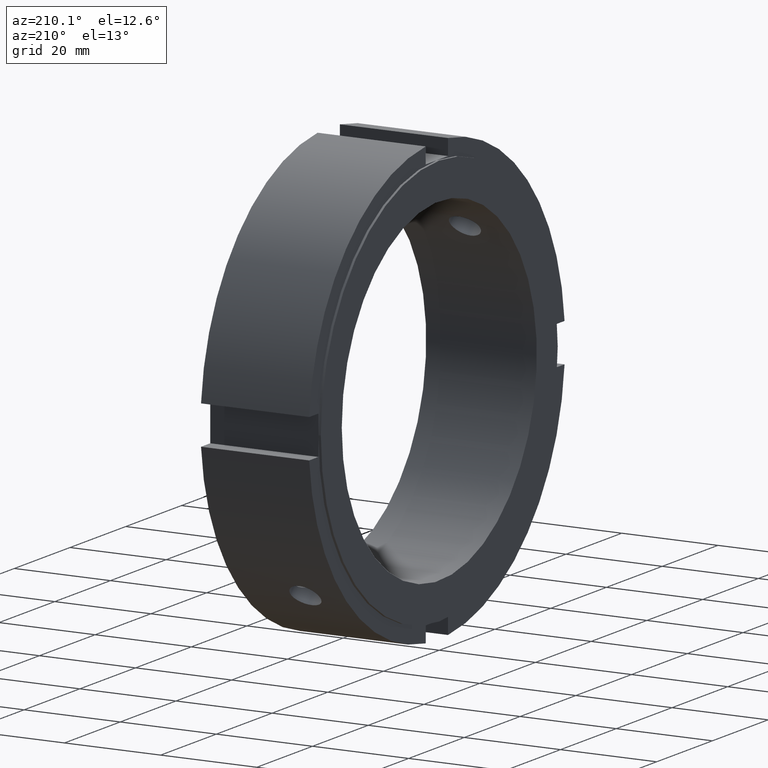
[diagram: clean part render]
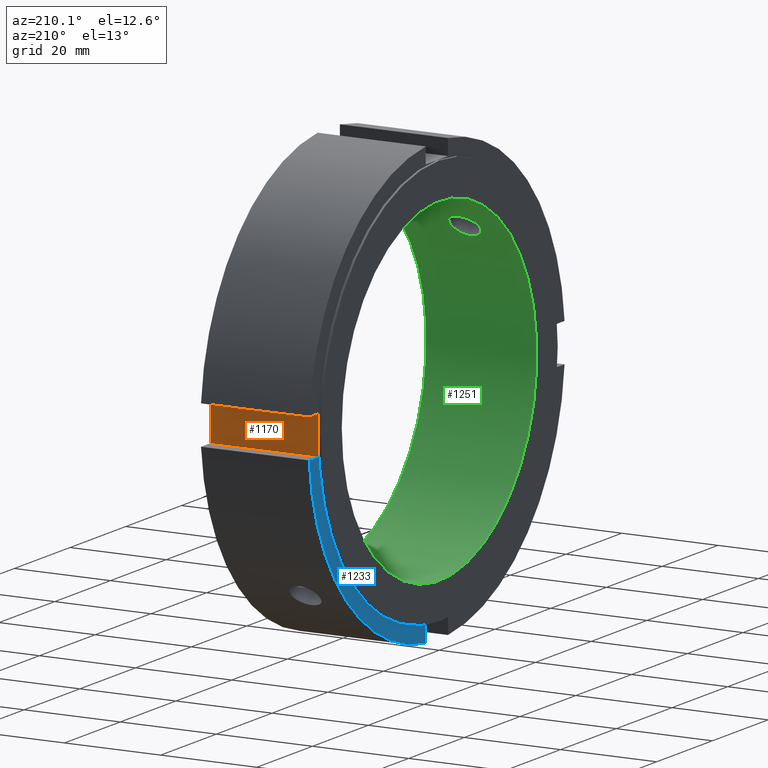
[diagram: same view with three faces highlighted in distinct colors, each labeled with its STEP entity id]
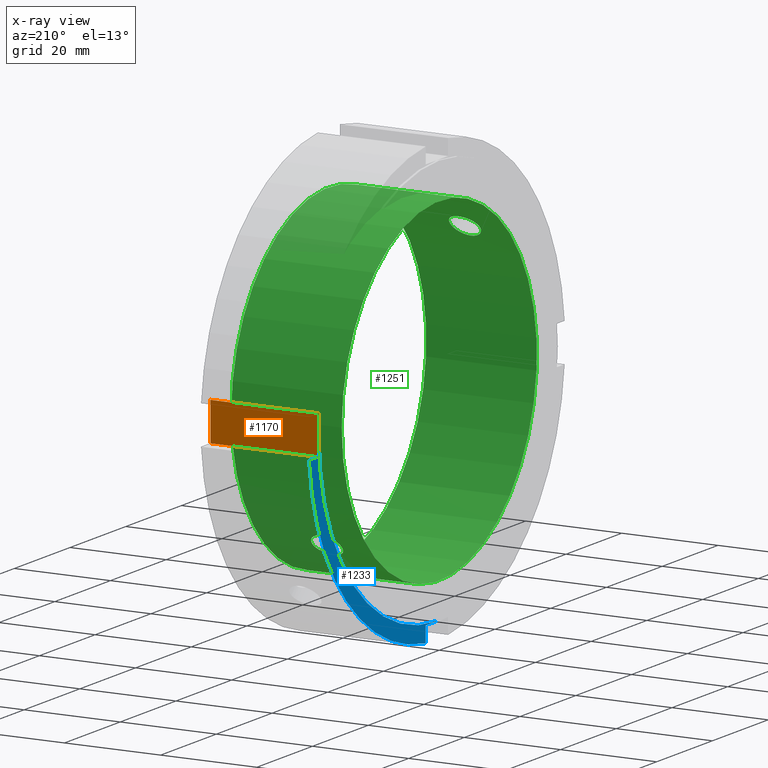
[diagram: x-ray of the same camera — body ghosted, the three highlighted faces saturated]
A machine part, auxiliary view with three faces highlighted in distinct colors.
The next image is the same camera in x-ray (body ghosted, the three faces saturated) — at least one of them is partly hidden behind the body in this view.
Their STEP definitions:

[orange] entity #1170 — the highlighted planar face has unit normal (0, -1, 0).
#874=CARTESIAN_POINT('',(0.499999999999989,42.500000000000007,3.999999999999998));
#875=VERTEX_POINT('',#874);
#882=CARTESIAN_POINT('',(0.499999999999989,42.5,0.0));
#883=VERTEX_POINT('',#882);
#884=CARTESIAN_POINT('',(0.499999999999989,42.5,3.999999999999998));
#885=DIRECTION('',(0.0,0.0,-1.0));
#886=VECTOR('',#885,3.999999999999998);
#887=LINE('',#884,#886);
#888=EDGE_CURVE('',#875,#883,#887,.T.);
#1061=CARTESIAN_POINT('',(22.999999999999989,42.500000000000007,-3.999999999999998));
#1062=VERTEX_POINT('',#1061);
#1069=CARTESIAN_POINT('',(22.999999999999989,42.500000000000007,3.999999999999998));
#1070=VERTEX_POINT('',#1069);
#1071=CARTESIAN_POINT('',(22.999999999999989,42.5,-3.999999999999997));
#1072=DIRECTION('',(0.0,0.0,1.0));
#1073=VECTOR('',#1072,7.999999999999996);
#1074=LINE('',#1071,#1073);
#1075=EDGE_CURVE('',#1062,#1070,#1074,.T.);
#1117=CARTESIAN_POINT('',(0.499999999999989,42.500000000000007,-3.999999999999998));
#1118=VERTEX_POINT('',#1117);
#1125=CARTESIAN_POINT('',(22.999999999999989,42.500000000000007,-3.999999999999998));
#1126=DIRECTION('',(-1.0,0.0,0.0));
#1127=VECTOR('',#1126,22.5);
#1128=LINE('',#1125,#1127);
#1129=EDGE_CURVE('',#1062,#1118,#1128,.T.);
#1144=CARTESIAN_POINT('',(22.999999999999989,42.500000000000007,3.999999999999998));
#1145=DIRECTION('',(-1.0,0.0,0.0));
#1146=VECTOR('',#1145,22.5);
#1147=LINE('',#1144,#1146);
#1148=EDGE_CURVE('',#1070,#875,#1147,.T.);
#1153=CARTESIAN_POINT('',(22.999999999999989,42.500000000000007,3.999999999999998));
#1154=DIRECTION('',(0.0,-1.0,0.0));
#1155=DIRECTION('',(0.0,0.0,-1.0));
#1156=AXIS2_PLACEMENT_3D('',#1153,#1154,#1155);
#1157=PLANE('',#1156);
#1158=CARTESIAN_POINT('',(0.499999999999989,42.5,0.0));
#1159=DIRECTION('',(0.0,0.0,-1.0));
#1160=VECTOR('',#1159,3.999999999999997);
#1161=LINE('',#1158,#1160);
#1162=EDGE_CURVE('',#883,#1118,#1161,.T.);
#1163=ORIENTED_EDGE('',*,*,#1162,.F.);
#1164=ORIENTED_EDGE('',*,*,#888,.F.);
#1165=ORIENTED_EDGE('',*,*,#1148,.F.);
#1166=ORIENTED_EDGE('',*,*,#1075,.F.);
#1167=ORIENTED_EDGE('',*,*,#1129,.T.);
#1168=EDGE_LOOP('',(#1163,#1164,#1165,#1166,#1167));
#1169=FACE_OUTER_BOUND('',#1168,.T.);
#1170=ADVANCED_FACE('',(#1169),#1157,.F.);

[blue] entity #1233 — the highlighted planar face has unit normal (-1, 0, 0).
#573=CARTESIAN_POINT('',(0.499999999999989,3.99999999999999,-45.825756949558411));
#574=VERTEX_POINT('',#573);
#575=CARTESIAN_POINT('',(0.499999999999989,3.99999999999999,-42.500000000000007));
#576=VERTEX_POINT('',#575);
#577=CARTESIAN_POINT('',(0.499999999999989,3.999999999999986,-45.825756949558411));
#578=DIRECTION('',(0.0,0.0,1.0));
#579=VECTOR('',#578,3.325756949558397);
#580=LINE('',#577,#579);
#581=EDGE_CURVE('',#574,#576,#580,.T.);
#613=CARTESIAN_POINT('',(0.499999999999989,-7.771561E-015,-42.5));
#614=VERTEX_POINT('',#613);
#615=CARTESIAN_POINT('',(0.499999999999989,3.999999999999993,-42.500000000000007));
#616=DIRECTION('',(0.0,-1.0,0.0));
#617=VECTOR('',#616,4.0);
#618=LINE('',#615,#617);
#619=EDGE_CURVE('',#576,#614,#618,.T.);
#882=CARTESIAN_POINT('',(0.499999999999989,42.5,0.0));
#883=VERTEX_POINT('',#882);
#1004=CARTESIAN_POINT('',(0.499999999999989,45.825756949558411,-3.999999999999998));
#1005=VERTEX_POINT('',#1004);
#1006=CARTESIAN_POINT('',(0.499999999999989,0.0,0.0));
#1007=DIRECTION('',(1.0,0.0,0.0));
#1008=DIRECTION('',(0.0,1.0,0.0));
#1009=AXIS2_PLACEMENT_3D('',#1006,#1007,#1008);
#1010=CIRCLE('',#1009,46.000000000000007);
#1011=EDGE_CURVE('',#574,#1005,#1010,.T.);
#1117=CARTESIAN_POINT('',(0.499999999999989,42.500000000000007,-3.999999999999998));
#1118=VERTEX_POINT('',#1117);
#1119=CARTESIAN_POINT('',(0.499999999999989,42.500000000000007,-3.999999999999998));
#1120=DIRECTION('',(0.0,1.0,0.0));
#1121=VECTOR('',#1120,3.325756949558397);
#1122=LINE('',#1119,#1121);
#1123=EDGE_CURVE('',#1118,#1005,#1122,.T.);
#1158=CARTESIAN_POINT('',(0.499999999999989,42.5,0.0));
#1159=DIRECTION('',(0.0,0.0,-1.0));
#1160=VECTOR('',#1159,3.999999999999997);
#1161=LINE('',#1158,#1160);
#1162=EDGE_CURVE('',#883,#1118,#1161,.T.);
#1205=CARTESIAN_POINT('',(0.499999999999989,0.0,0.0));
#1206=DIRECTION('',(1.0,0.0,0.0));
#1207=DIRECTION('',(0.0,1.0,0.0));
#1208=AXIS2_PLACEMENT_3D('',#1205,#1206,#1207);
#1209=CIRCLE('',#1208,42.5);
#1210=EDGE_CURVE('',#614,#883,#1209,.T.);
#1220=CARTESIAN_POINT('',(0.499999999999989,44.250000000000007,0.0));
#1221=DIRECTION('',(-1.0,0.0,0.0));
#1222=DIRECTION('',(0.0,0.0,1.0));
#1223=AXIS2_PLACEMENT_3D('',#1220,#1221,#1222);
#1224=PLANE('',#1223);
#1225=ORIENTED_EDGE('',*,*,#619,.T.);
#1226=ORIENTED_EDGE('',*,*,#1210,.T.);
#1227=ORIENTED_EDGE('',*,*,#1162,.T.);
#1228=ORIENTED_EDGE('',*,*,#1123,.T.);
#1229=ORIENTED_EDGE('',*,*,#1011,.F.);
#1230=ORIENTED_EDGE('',*,*,#581,.T.);
#1231=EDGE_LOOP('',(#1225,#1226,#1227,#1228,#1229,#1230));
#1232=FACE_OUTER_BOUND('',#1231,.T.);
#1233=ADVANCED_FACE('',(#1232),#1224,.T.);

[green] entity #1251 — the highlighted cylindrical surface (bore or boss wall) has radius 35 mm, axis along (1, 0, 0).
#256=CARTESIAN_POINT('',(8.999999999999988,-26.843501566049479,22.459439522692882));
#257=VERTEX_POINT('',#256);
#258=CARTESIAN_POINT('',(8.999999999999988,-26.843501566049479,22.45943952269289));
#259=CARTESIAN_POINT('',(9.389462363561327,-26.843501566049479,22.45943952269289));
#260=CARTESIAN_POINT('',(9.804744290246559,-26.793525065202338,22.519596250635992));
#261=CARTESIAN_POINT('',(10.568459528347285,-26.588145612526542,22.761715961517268));
#262=CARTESIAN_POINT('',(10.916910259376685,-26.432483692662871,22.943404179325533));
#263=CARTESIAN_POINT('',(11.467151208834325,-26.067820331297106,23.356899031255828));
#264=CARTESIAN_POINT('',(11.70569422598755,-25.834419119903895,23.616281927851798));
#265=CARTESIAN_POINT('',(12.022124257730383,-25.312709378931846,24.174629826618691));
#266=CARTESIAN_POINT('',(12.099999999999989,-25.024128244108823,24.473346438949495));
#267=CARTESIAN_POINT('',(12.099999999999987,-24.473346438949495,25.02412824410883));
#268=CARTESIAN_POINT('',(12.022124257730384,-24.174629826618691,25.312709378931849));
#269=CARTESIAN_POINT('',(11.705694225987555,-23.616281927851794,25.834419119903899));
#270=CARTESIAN_POINT('',(11.467151208834325,-23.356899031255818,26.067820331297114));
#271=CARTESIAN_POINT('',(10.91691025937668,-22.943404179325533,26.432483692662878));
#272=CARTESIAN_POINT('',(10.56845952834729,-22.761715961517261,26.588145612526549));
#273=CARTESIAN_POINT('',(9.804744290246564,-22.519596250635985,26.793525065202349));
#274=CARTESIAN_POINT('',(9.389462363561327,-22.459439522692879,26.843501566049483));
#275=CARTESIAN_POINT('',(8.610537636438648,-22.459439522692879,26.843501566049483));
#276=CARTESIAN_POINT('',(8.195255709753413,-22.519596250635985,26.793525065202349));
#277=CARTESIAN_POINT('',(7.431540471652688,-22.761715961517261,26.588145612526549));
#278=CARTESIAN_POINT('',(7.083089740623294,-22.943404179325533,26.432483692662878));
#279=CARTESIAN_POINT('',(6.532848791165651,-23.356899031255818,26.067820331297114));
#280=CARTESIAN_POINT('',(6.294305774012417,-23.616281927851794,25.834419119903895));
#281=CARTESIAN_POINT('',(5.977875742269588,-24.174629826618698,25.312709378931846));
#282=CARTESIAN_POINT('',(5.899999999999988,-24.473346438949495,25.024128244108827));
#283=CARTESIAN_POINT('',(5.899999999999988,-25.024128244108823,24.473346438949498));
#284=CARTESIAN_POINT('',(5.977875742269594,-25.312709378931846,24.174629826618691));
#285=CARTESIAN_POINT('',(6.294305774012424,-25.834419119903895,23.616281927851798));
#286=CARTESIAN_POINT('',(6.532848791165651,-26.06782033129711,23.356899031255828));
#287=CARTESIAN_POINT('',(7.083089740623294,-26.432483692662871,22.943404179325533));
#288=CARTESIAN_POINT('',(7.431540471652688,-26.588145612526542,22.761715961517268));
#289=CARTESIAN_POINT('',(8.195255709753415,-26.793525065202338,22.519596250635992));
#290=CARTESIAN_POINT('',(8.610537636438648,-26.843501566049476,22.45943952269289));
#291=CARTESIAN_POINT('',(8.999999999999988,-26.843501566049476,22.45943952269289));
#292=B_SPLINE_CURVE_WITH_KNOTS('',3,(#258,#259,#260,#261,#262,#263,#264,#265,#266,#267,#268,#269,#270,#271,#272,#273,#274,#275,#276,#277,#278,#279,#280,#281,#282,#283,#284,#285,#286,#287,#288,#289,#290,#291),.UNSPECIFIED.,.T.,.U.,(4,2,2,2,2,2,2,2,2,2,2,2,2,2,2,2,4),(0.0,0.116838709068402,0.233677418136804,0.350515882951503,0.467354347766202,0.5841928125809,0.701031277395599,0.817869986464001,0.934708695532403,1.051547404600805,1.168386113669207,1.285224578483906,1.402063043298604,1.518901508113303,1.635739972928002,1.752578681996404,1.869417391064806),.UNSPECIFIED.);
#293=EDGE_CURVE('',#257,#257,#292,.T.);
#486=CARTESIAN_POINT('',(8.999999999999988,22.459439522692879,-26.843501566049483));
#487=VERTEX_POINT('',#486);
#488=CARTESIAN_POINT('',(8.999999999999988,22.459439522692879,-26.843501566049483));
#489=CARTESIAN_POINT('',(8.610537636438648,22.459439522692879,-26.843501566049483));
#490=CARTESIAN_POINT('',(8.195255709753413,22.519596250635985,-26.793525065202349));
#491=CARTESIAN_POINT('',(7.431540471652688,22.761715961517261,-26.588145612526549));
#492=CARTESIAN_POINT('',(7.083089740623294,22.943404179325533,-26.432483692662878));
#493=CARTESIAN_POINT('',(6.532848791165651,23.356899031255818,-26.067820331297114));
#494=CARTESIAN_POINT('',(6.294305774012422,23.616281927851791,-25.834419119903899));
#495=CARTESIAN_POINT('',(5.977875742269591,24.174629826618691,-25.312709378931849));
#496=CARTESIAN_POINT('',(5.899999999999988,24.473346438949495,-25.024128244108827));
#497=CARTESIAN_POINT('',(5.899999999999988,25.024128244108823,-24.473346438949498));
#498=CARTESIAN_POINT('',(5.977875742269594,25.312709378931846,-24.174629826618691));
#499=CARTESIAN_POINT('',(6.294305774012424,25.834419119903895,-23.616281927851798));
#500=CARTESIAN_POINT('',(6.532848791165651,26.06782033129711,-23.356899031255828));
#501=CARTESIAN_POINT('',(7.083089740623293,26.432483692662871,-22.943404179325533));
#502=CARTESIAN_POINT('',(7.43154047165269,26.588145612526542,-22.761715961517268));
#503=CARTESIAN_POINT('',(8.195255709753418,26.793525065202338,-22.519596250635992));
#504=CARTESIAN_POINT('',(8.610537636438647,26.843501566049479,-22.459439522692882));
#505=CARTESIAN_POINT('',(9.389462363561329,26.843501566049479,-22.459439522692882));
#506=CARTESIAN_POINT('',(9.804744290246557,26.793525065202338,-22.519596250635992));
#507=CARTESIAN_POINT('',(10.568459528347285,26.588145612526542,-22.761715961517268));
#508=CARTESIAN_POINT('',(10.916910259376685,26.432483692662878,-22.943404179325533));
#509=CARTESIAN_POINT('',(11.467151208834327,26.06782033129711,-23.356899031255828));
#510=CARTESIAN_POINT('',(11.705694225987553,25.834419119903895,-23.616281927851798));
#511=CARTESIAN_POINT('',(12.022124257730383,25.312709378931846,-24.174629826618691));
#512=CARTESIAN_POINT('',(12.099999999999991,25.024128244108823,-24.473346438949498));
#513=CARTESIAN_POINT('',(12.099999999999987,24.473346438949495,-25.024128244108823));
#514=CARTESIAN_POINT('',(12.022124257730386,24.174629826618698,-25.312709378931846));
#515=CARTESIAN_POINT('',(11.705694225987557,23.616281927851794,-25.834419119903895));
#516=CARTESIAN_POINT('',(11.467151208834325,23.356899031255818,-26.067820331297114));
#517=CARTESIAN_POINT('',(10.91691025937668,22.943404179325533,-26.432483692662878));
#518=CARTESIAN_POINT('',(10.568459528347285,22.761715961517261,-26.588145612526549));
#519=CARTESIAN_POINT('',(9.804744290246557,22.519596250635985,-26.793525065202349));
#520=CARTESIAN_POINT('',(9.389462363561329,22.459439522692879,-26.843501566049483));
#521=CARTESIAN_POINT('',(8.999999999999989,22.459439522692879,-26.843501566049483));
#522=B_SPLINE_CURVE_WITH_KNOTS('',3,(#488,#489,#490,#491,#492,#493,#494,#495,#496,#497,#498,#499,#500,#501,#502,#503,#504,#505,#506,#507,#508,#509,#510,#511,#512,#513,#514,#515,#516,#517,#518,#519,#520,#521),.UNSPECIFIED.,.T.,.U.,(4,2,2,2,2,2,2,2,2,2,2,2,2,2,2,2,4),(0.0,0.116838709068402,0.233677418136804,0.350515882951503,0.467354347766201,0.5841928125809,0.701031277395599,0.817869986464001,0.934708695532403,1.051547404600805,1.168386113669207,1.285224578483906,1.402063043298605,1.518901508113304,1.635739972928002,1.752578681996404,1.869417391064806),.UNSPECIFIED.);
#523=EDGE_CURVE('',#487,#487,#522,.T.);
#1100=CARTESIAN_POINT('',(22.999999999999993,35.0,0.0));
#1101=VERTEX_POINT('',#1100);
#1102=CARTESIAN_POINT('',(22.999999999999993,0.0,0.0));
#1103=DIRECTION('',(1.0,0.0,0.0));
#1104=DIRECTION('',(0.0,1.0,0.0));
#1105=AXIS2_PLACEMENT_3D('',#1102,#1103,#1104);
#1106=CIRCLE('',#1105,35.0);
#1107=EDGE_CURVE('',#1101,#1101,#1106,.T.);
#1187=CARTESIAN_POINT('',(-9.822007E-015,35.0,0.0));
#1188=VERTEX_POINT('',#1187);
#1189=CARTESIAN_POINT('',(-9.822872E-015,0.0,0.0));
#1190=DIRECTION('',(1.0,0.0,0.0));
#1191=DIRECTION('',(0.0,1.0,0.0));
#1192=AXIS2_PLACEMENT_3D('',#1189,#1190,#1191);
#1193=CIRCLE('',#1192,35.0);
#1194=EDGE_CURVE('',#1188,#1188,#1193,.T.);
#1234=CARTESIAN_POINT('',(11.499999999999993,0.0,0.0));
#1235=DIRECTION('',(1.0,0.0,0.0));
#1236=DIRECTION('',(0.0,1.0,0.0));
#1237=AXIS2_PLACEMENT_3D('',#1234,#1235,#1236);
#1238=CYLINDRICAL_SURFACE('',#1237,35.0);
#1239=ORIENTED_EDGE('',*,*,#1194,.F.);
#1240=EDGE_LOOP('',(#1239));
#1241=FACE_OUTER_BOUND('',#1240,.T.);
#1242=ORIENTED_EDGE('',*,*,#293,.T.);
#1243=EDGE_LOOP('',(#1242));
#1244=FACE_BOUND('',#1243,.T.);
#1245=ORIENTED_EDGE('',*,*,#523,.T.);
#1246=EDGE_LOOP('',(#1245));
#1247=FACE_BOUND('',#1246,.T.);
#1248=ORIENTED_EDGE('',*,*,#1107,.T.);
#1249=EDGE_LOOP('',(#1248));
#1250=FACE_BOUND('',#1249,.T.);
#1251=ADVANCED_FACE('',(#1241,#1244,#1247,#1250),#1238,.F.);